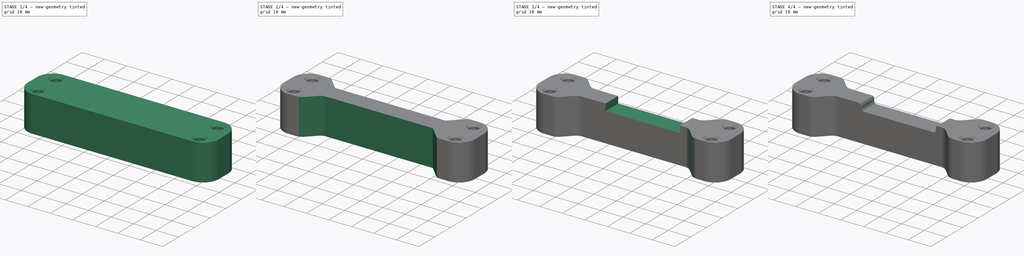
[diagram: build sequence overview — one tinted view per stage of 4, left to right]
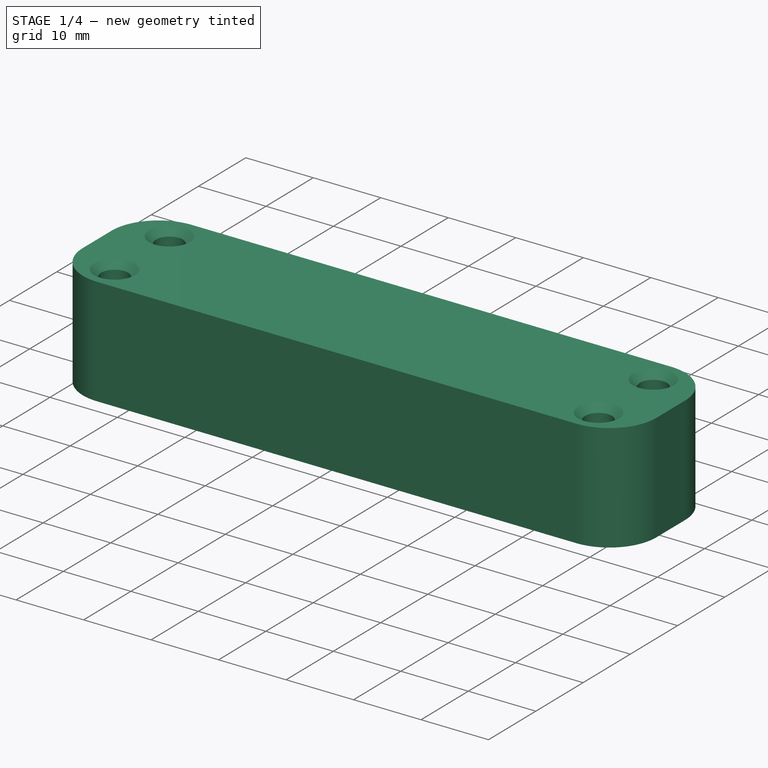
[diagram: stage 1 of 4 — iso view after this stage's code; geometry added in this stage tinted green]
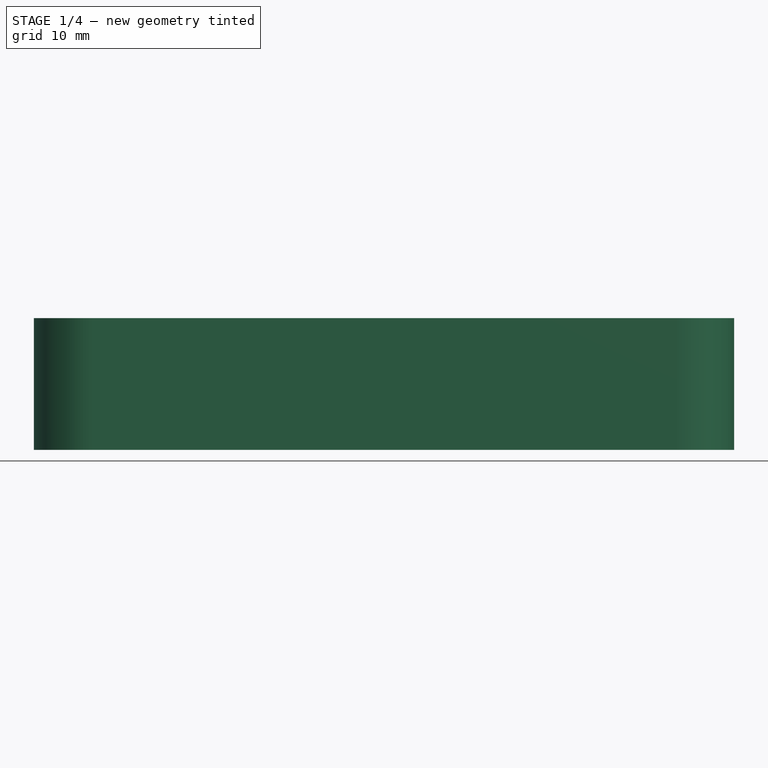
[diagram: stage 1 of 4 — front view after this stage's code; geometry added in this stage tinted green]
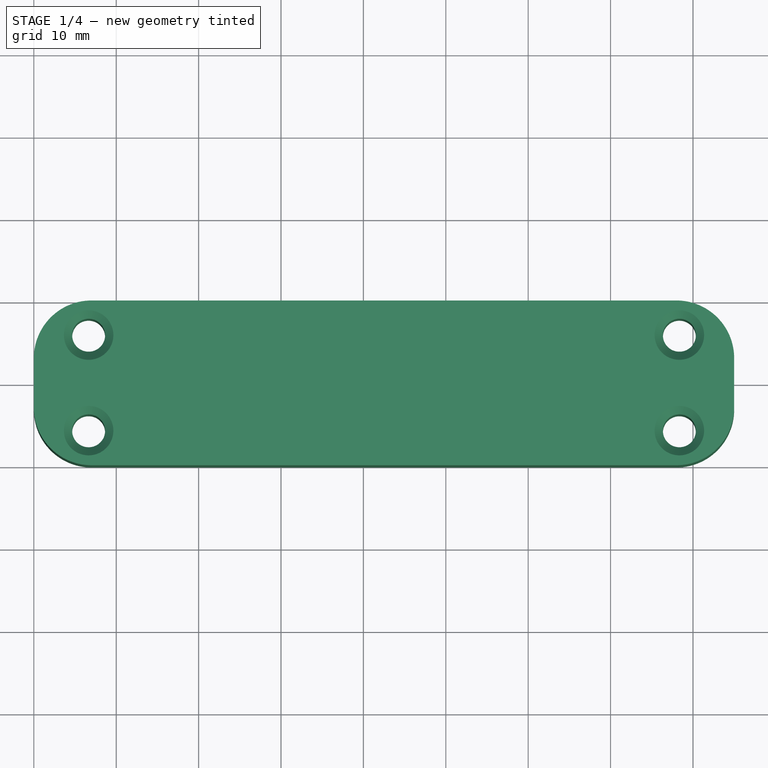
[diagram: stage 1 of 4 — top view after this stage's code; geometry added in this stage tinted green]
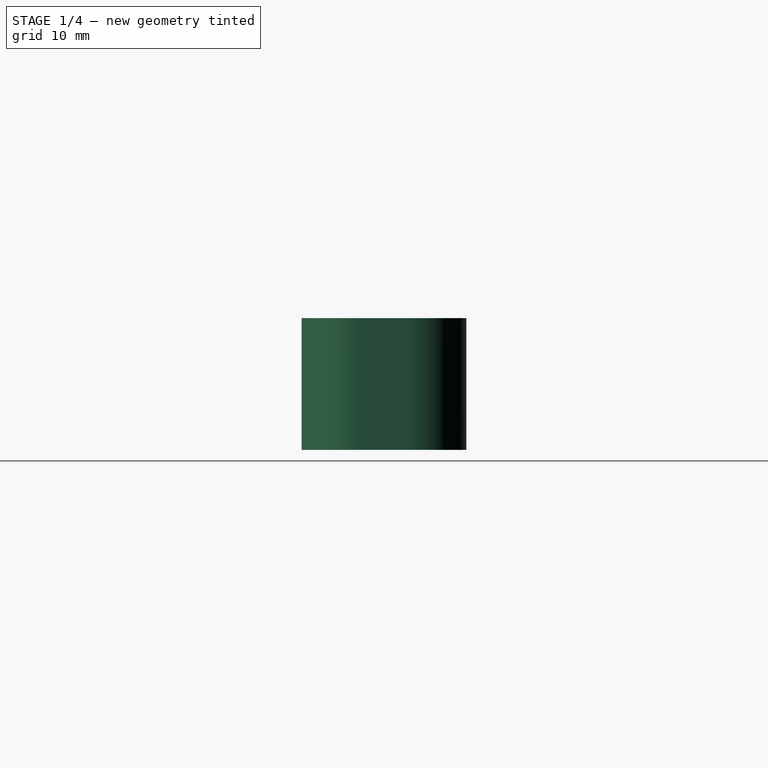
[diagram: stage 1 of 4 — right view after this stage's code; geometry added in this stage tinted green]
FCSTD DOCUMENT  (FreeCAD 0.20R29603 (Git))
Label: entretoise-double-carte-tirettes
License: Public Domain
LicenseURL: http://en.wikipedia.org/wiki/Public_domain
objects: PartDesign::Fillet×8, Sketcher::SketchObject×3, PartDesign::Chamfer×2, PartDesign::Pocket×2, PartDesign::Pad×1, PartDesign::Body×1
note: 30 computed .brp shape members not serialized (recipe doc carries the construction recipe); baked Part::Feature solids carry a one-line shape summary decoded from their .brp

FEATURE [Sketcher::SketchObject] Sketch
  FullyConstrained = true
  MapMode = 5
  Support = -> [XY_Plane]
  sketch-geometry (22):
    g0: ArcOfCircle CenterX=7 CenterY=3 CenterZ=0 NormalX=0 NormalY=0 NormalZ=1 AngleXU=0 Radius=7 StartAngle=1.5708 EndAngle=3.14159
    g1: LineSegment StartX=7 StartY=10 StartZ=0 EndX=78 EndY=10 EndZ=0
    g2: ArcOfCircle CenterX=78 CenterY=3 CenterZ=0 NormalX=0 NormalY=0 NormalZ=1 AngleXU=0 Radius=7 StartAngle=1e-16 EndAngle=1.5708
    g3: LineSegment StartX=85 StartY=3 StartZ=0 EndX=85 EndY=-3 EndZ=0
    g4: ArcOfCircle CenterX=78 CenterY=-3 CenterZ=0 NormalX=0 NormalY=0 NormalZ=1 AngleXU=0 Radius=7 StartAngle=4.71239 EndAngle=6.28319
    g5: LineSegment StartX=78 StartY=-10 StartZ=0 EndX=7 EndY=-10 EndZ=0
    g6: ArcOfCircle CenterX=7 CenterY=-3 CenterZ=0 NormalX=0 NormalY=0 NormalZ=1 AngleXU=0 Radius=7 StartAngle=3.14159 EndAngle=4.71239
    g7: LineSegment StartX=0 StartY=-3 StartZ=0 EndX=0 EndY=3 EndZ=0
    g8: GeomPoint X=0 Y=10 Z=0
    g9: GeomPoint X=85 Y=-10 Z=0
    g10: Circle CenterX=6.65 CenterY=5.8 CenterZ=0 NormalX=0 NormalY=0 NormalZ=1 AngleXU=0 Radius=2
    g11: Circle CenterX=78.35 CenterY=5.8 CenterZ=0 NormalX=0 NormalY=0 NormalZ=1 AngleXU=0 Radius=2
    g12: Circle CenterX=6.65 CenterY=-5.8 CenterZ=0 NormalX=0 NormalY=0 NormalZ=1 AngleXU=0 Radius=2
    g13: Circle CenterX=78.35 CenterY=-5.8 CenterZ=0 NormalX=0 NormalY=0 NormalZ=1 AngleXU=0 Radius=2
    g14: LineSegment StartX=6.65 StartY=5.8 StartZ=0 EndX=78.35 EndY=5.8 EndZ=0
    g15: LineSegment StartX=78.35 StartY=5.8 StartZ=0 EndX=78.35 EndY=-5.8 EndZ=0
    g16: LineSegment StartX=78.35 StartY=-5.8 StartZ=0 EndX=6.65 EndY=-5.8 EndZ=0
    g17: LineSegment StartX=6.65 StartY=-5.8 StartZ=0 EndX=6.65 EndY=5.8 EndZ=0
    g18: GeomPoint X=42.5 Y=5.8 Z=0
    g19: GeomPoint X=42.5 Y=10 Z=0
    g20: GeomPoint X=6.65 Y=0 Z=0
    g21: GeomPoint X=0 Y=0 Z=0
  constraints (49):
    c: Tangent(g0,g1) = 1.5708
    c: Tangent(g1,g2) = 1.5708
    c: Tangent(g2,g3) = 1.5708
    c: Tangent(g3,g4) = 1.5708
    c: Tangent(g4,g5) = 1.5708
    c: Tangent(g5,g6) = 1.5708
    c: Tangent(g6,g7) = 1.5708
    c: Tangent(g7,g0) = 1.5708
    c: Horizontal(g1)
    c: Vertical(g3)
    c: Equal(g0,g2)
    c: Equal(g2,g4)
    c: Equal(g4,g6)
    c: PointOnObject(g8,g1)
    c: PointOnObject(g8,g7)
    c: PointOnObject(g9,g3)
    c: PointOnObject(g9,g5)
    c: DistanceX(g6,g3) = 85
    c: DistanceY(g5,g0) = 20
    c: Radius(g0) = 7
    c: Tangent(g7,g-2)
    c: DistanceX(g10,g11) = 71.7
    c: Diameter(g10) = 4
    c: Diameter(g11) = 4
    c: Horizontal(g10,g11)
    c: DistanceX(g12,g13) = 71.7
    c: Equal(g10,g12) = 4
    c: Equal(g11,g13) = 4
    c: Horizontal(g12,g13)
    c: Vertical(g10,g12)
    c: DistanceY(g12,g10) = 11.6
    c: Coincident(g14,g15)
    c: Coincident(g15,g16)
    c: Coincident(g16,g17)
    c: Coincident(g17,g14)
    c: Horizontal(g14)
    c: Horizontal(g16)
    c: Vertical(g15)
    c: Vertical(g17)
    c: Coincident(g14,g10)
    c: Coincident(g15,g13)
    c: Symmetric(g10,g11,g18)
    c: Symmetric(g0,g1,g19)
    c: Vertical(g18,g19)
    c: Symmetric(g10,g12,g20)
    c: Symmetric(g0,g6,g21)
    c: Horizontal(g21,g20)
    c: PointOnObject(g20,g-1)
    c: Horizontal(g5)
FEATURE [PartDesign::Pad] Pad
  Direction = (0,0,1)
  Length = 16
  Length2 = 10
  Profile = -> Sketch
  ReferenceAxis = -> Sketch [N_Axis]
  Type = 0
FEATURE [PartDesign::Chamfer] Chamfer
  Angle = 45
  Base = -> Pad [Edge33,Edge27,Edge36,Edge30]
  BaseFeature = -> Pad
  ChamferType = 0
  FlipDirection = false
  Size = 1
  Size2 = 1
  SupportTransform = false
  UseAllEdges = false
FEATURE [PartDesign::Chamfer] Chamfer001
  Angle = 45
  Base = -> Chamfer [Edge14,Edge3,Edge15,Edge16]
  BaseFeature = -> Chamfer
  ChamferType = 0
  FlipDirection = false
  Size = 1
  Size2 = 1
  SupportTransform = false
  UseAllEdges = false
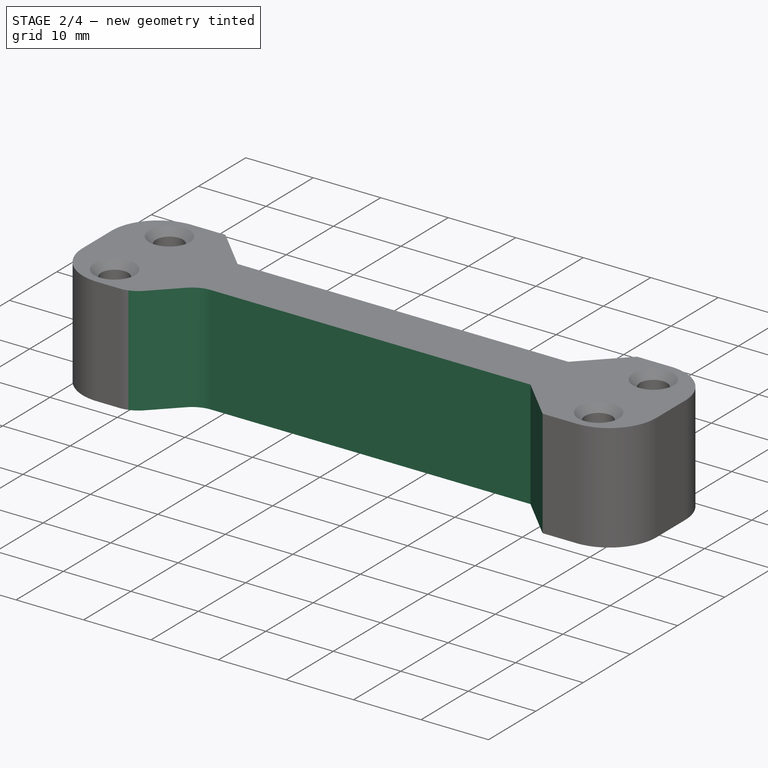
[diagram: stage 2 of 4 — iso view after this stage's code; geometry added in this stage tinted green]
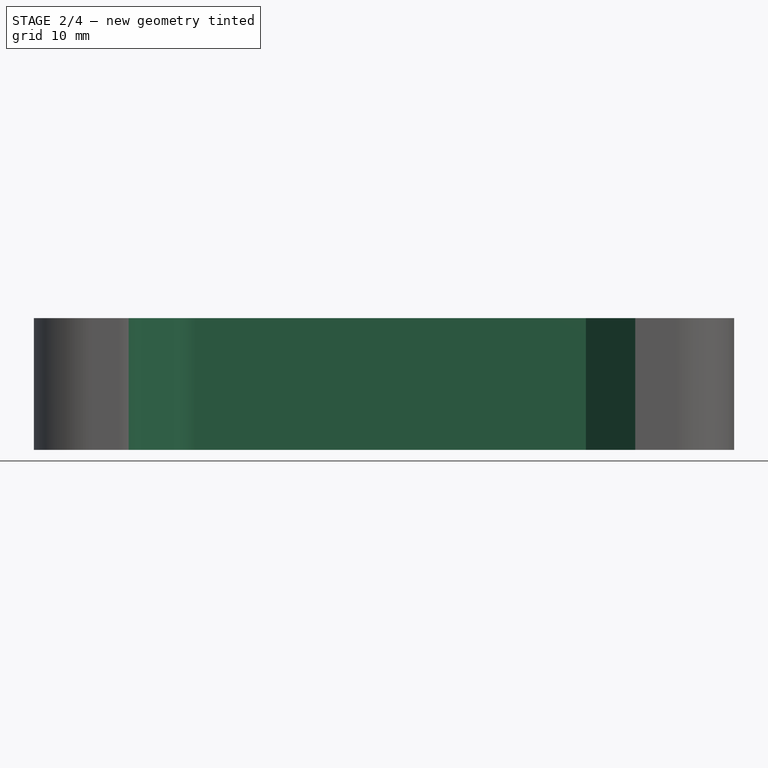
[diagram: stage 2 of 4 — front view after this stage's code; geometry added in this stage tinted green]
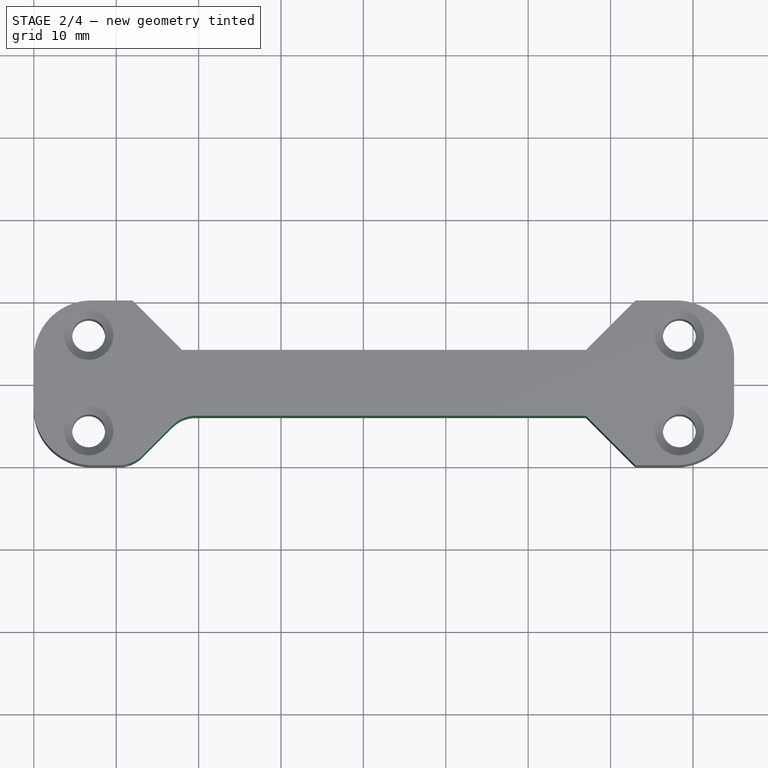
[diagram: stage 2 of 4 — top view after this stage's code; geometry added in this stage tinted green]
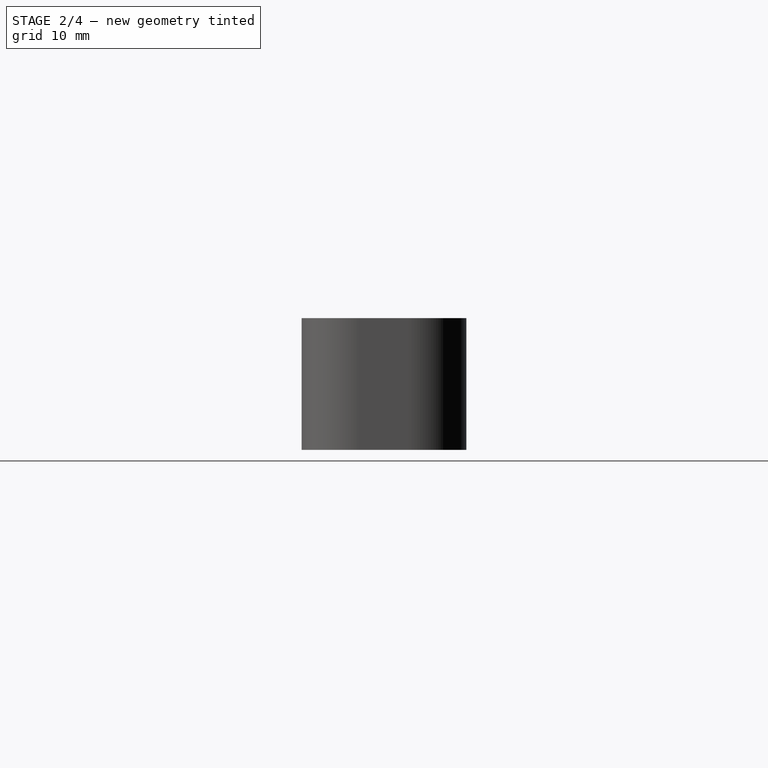
[diagram: stage 2 of 4 — right view after this stage's code; geometry added in this stage tinted green]
FEATURE [Sketcher::SketchObject] Sketch001
  ExternalGeometry = -> [Chamfer001]
  FullyConstrained = true
  MapMode = 5
  Placement = pos=(0,0,16) rot=(0,0,1;0rad)
  Support = -> [Chamfer001]
  sketch-geometry (8):
    g0: LineSegment StartX=12 StartY=10 StartZ=0 EndX=18 EndY=4 EndZ=0
    g1: LineSegment StartX=18 StartY=4 StartZ=0 EndX=67 EndY=4 EndZ=0
    g2: LineSegment StartX=67 StartY=4 StartZ=0 EndX=73 EndY=10 EndZ=0
    g3: LineSegment StartX=73 StartY=10 StartZ=0 EndX=12 EndY=10 EndZ=0
    g4: LineSegment StartX=12 StartY=-10 StartZ=0 EndX=73 EndY=-10 EndZ=0
    g5: LineSegment StartX=73 StartY=-10 StartZ=0 EndX=67 EndY=-4 EndZ=0
    g6: LineSegment StartX=67 StartY=-4 StartZ=0 EndX=18 EndY=-4 EndZ=0
    g7: LineSegment StartX=18 StartY=-4 StartZ=0 EndX=12 EndY=-10 EndZ=0
  constraints (24):
    c: Coincident(g0,g1)
    c: Horizontal(g1)
    c: Coincident(g1,g2)
    c: Coincident(g2,g3)
    c: Angle(g0,g3) = 0.785398
    c: Angle(g3,g2) = 0.785398
    c: Coincident(g0,g3)
    c: PointOnObject(g0,g-3)
    c: PointOnObject(g2,g-3)
    c: DistanceY(g0) = 4
    c: DistanceX(g-3,g0) = 5
    c: DistanceX(g2,g-3) = 5
    c: PointOnObject(g4,g-4)
    c: PointOnObject(g4,g-4)
    c: Coincident(g4,g5)
    c: Coincident(g5,g6)
    c: Horizontal(g6)
    c: Coincident(g6,g7)
    c: Coincident(g7,g4)
    c: Angle(g4,g7) = 0.785398
    c: Angle(g5,g4) = 0.785398
    c: Equal(g4,g3)
    c: DistanceX(g-4,g4) = 5
    c: DistanceY(g6) = -4
FEATURE [PartDesign::Pocket] Pocket
  BaseFeature = -> Chamfer001
  Direction = (0,0,-1)
  Length = 5
  Length2 = 5
  Profile = -> Sketch001
  ReferenceAxis = -> Sketch001 [N_Axis]
  Type = 1
FEATURE [PartDesign::Fillet] Fillet
  Base = -> Pocket [Edge58]
  BaseFeature = -> Pocket
  Radius = 4
  SupportTransform = false
  UseAllEdges = false
FEATURE [PartDesign::Fillet] Fillet001
  Base = -> Fillet [Edge24]
  BaseFeature = -> Fillet
  Radius = 4
  SupportTransform = false
  UseAllEdges = false
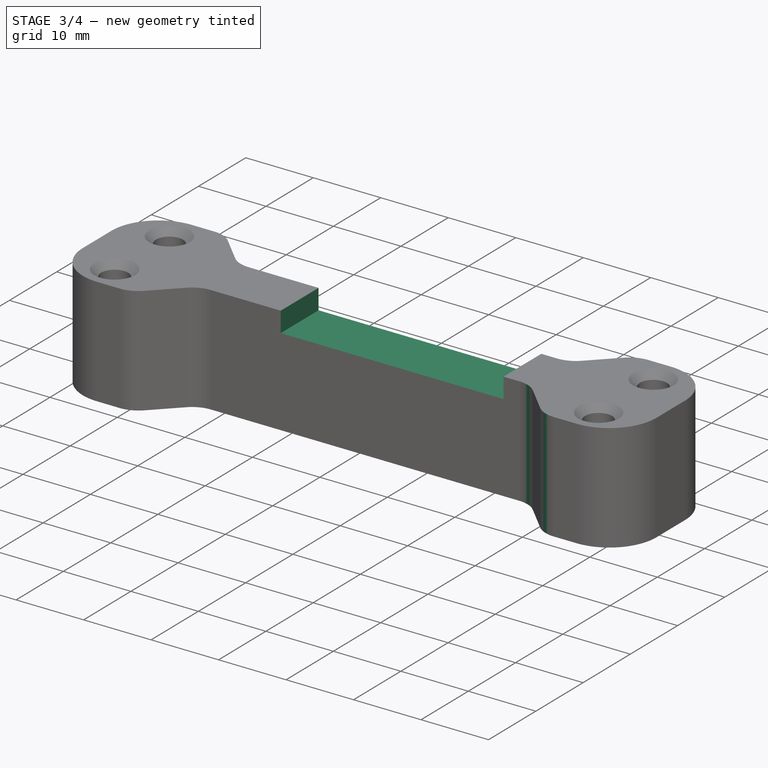
[diagram: stage 3 of 4 — iso view after this stage's code; geometry added in this stage tinted green]
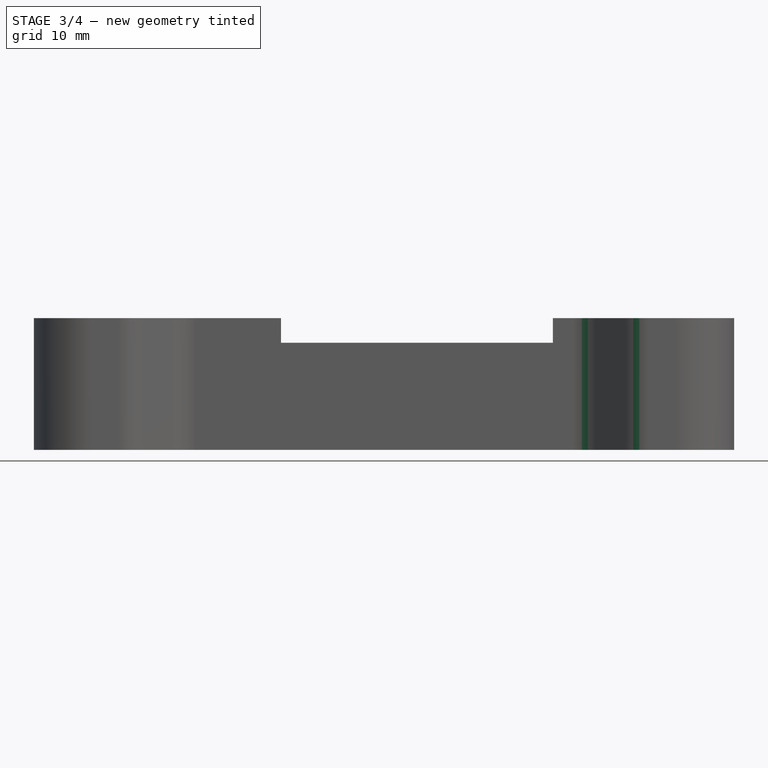
[diagram: stage 3 of 4 — front view after this stage's code; geometry added in this stage tinted green]
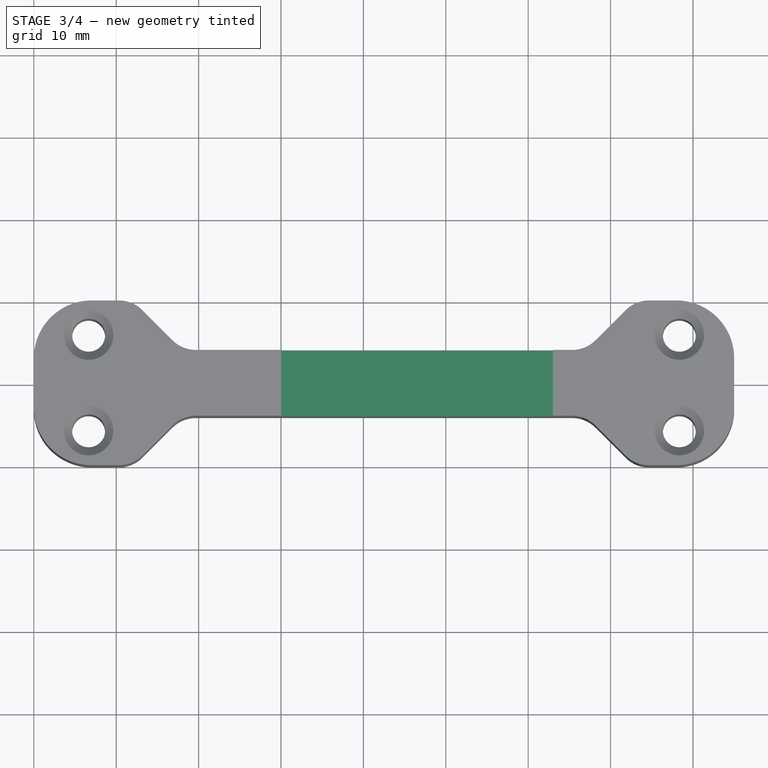
[diagram: stage 3 of 4 — top view after this stage's code; geometry added in this stage tinted green]
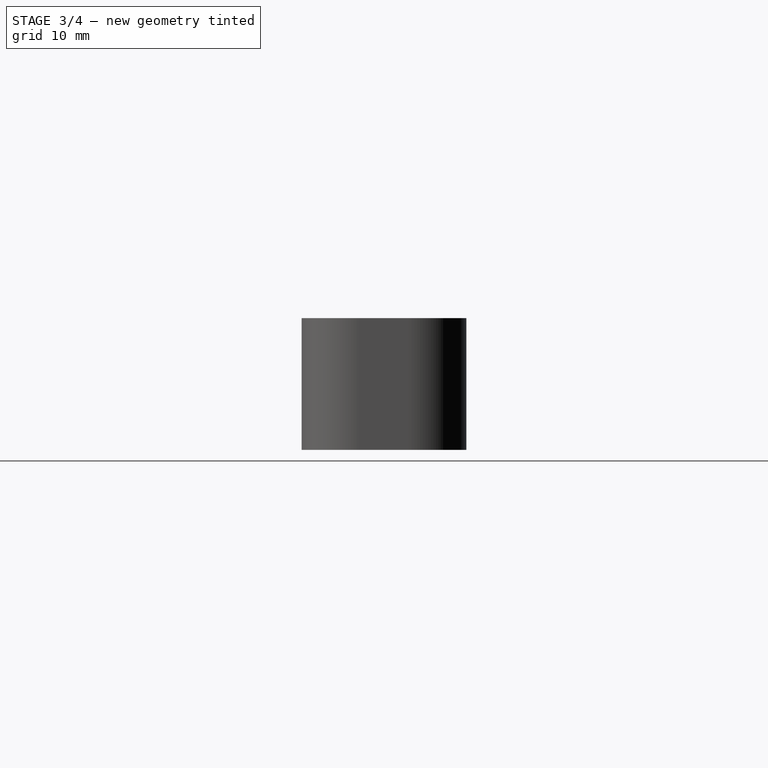
[diagram: stage 3 of 4 — right view after this stage's code; geometry added in this stage tinted green]
FEATURE [PartDesign::Fillet] Fillet002
  Base = -> Fillet001 [Edge35,Edge31]
  BaseFeature = -> Fillet001
  Radius = 4
  SupportTransform = false
  UseAllEdges = false
FEATURE [PartDesign::Fillet] Fillet003
  Base = -> Fillet002 [Edge58,Edge63]
  BaseFeature = -> Fillet002
  Radius = 4
  SupportTransform = false
  UseAllEdges = false
FEATURE [PartDesign::Fillet] Fillet004
  Base = -> Fillet003 [Edge47,Edge43]
  BaseFeature = -> Fillet003
  Radius = 4
  SupportTransform = false
  UseAllEdges = false
FEATURE [Sketcher::SketchObject] Sketch002
  ExternalGeometry = -> [Fillet004]
  FullyConstrained = true
  MapMode = 5
  Placement = pos=(0,0,16) rot=(0,0,1;0rad)
  Support = -> [Fillet004]
  sketch-geometry (4):
    g0: LineSegment StartX=30 StartY=5 StartZ=0 EndX=63 EndY=5 EndZ=0
    g1: LineSegment StartX=63 StartY=5 StartZ=0 EndX=63 EndY=-5 EndZ=0
    g2: LineSegment StartX=63 StartY=-5 StartZ=0 EndX=30 EndY=-5 EndZ=0
    g3: LineSegment StartX=30 StartY=-5 StartZ=0 EndX=30 EndY=5 EndZ=0
  constraints (11):
    c: Coincident(g0,g1)
    c: Coincident(g1,g2)
    c: Coincident(g2,g3)
    c: Coincident(g3,g0)
    c: Horizontal(g0)
    c: Horizontal(g2)
    c: Vertical(g3)
    c: DistanceX(g0,g-3) = 22
    c: DistanceX(g0,g0) = 33
    c: DistanceY(g1,g1) = 10
    c: Symmetric(g0,g1,g-1)
FEATURE [PartDesign::Pocket] Pocket001
  BaseFeature = -> Fillet004
  Direction = (0,0,-1)
  Length = 3
  Length2 = 5
  Profile = -> Sketch002
  ReferenceAxis = -> Sketch002 [N_Axis]
  Type = 0
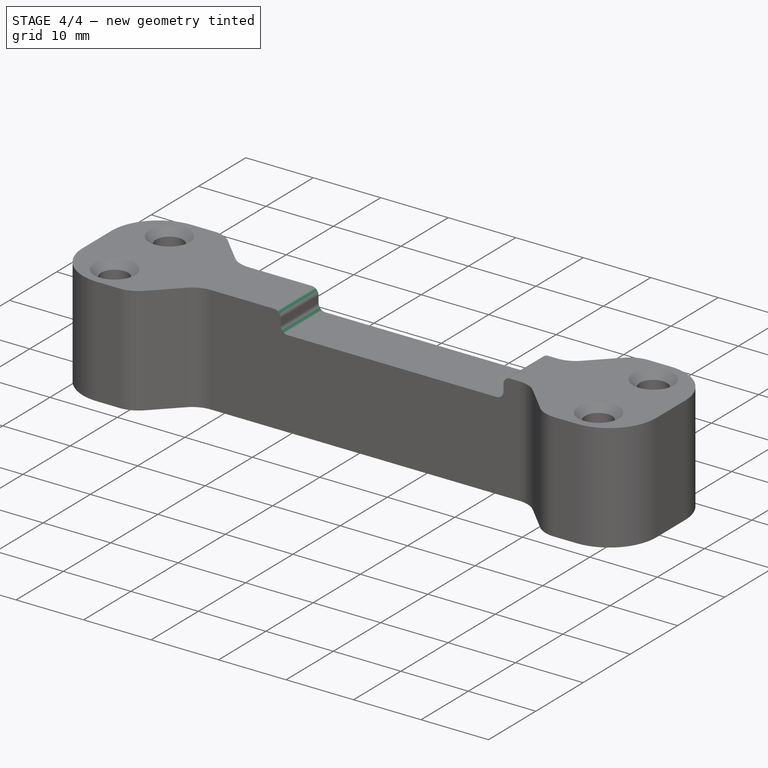
[diagram: stage 4 of 4 — iso view after this stage's code; geometry added in this stage tinted green]
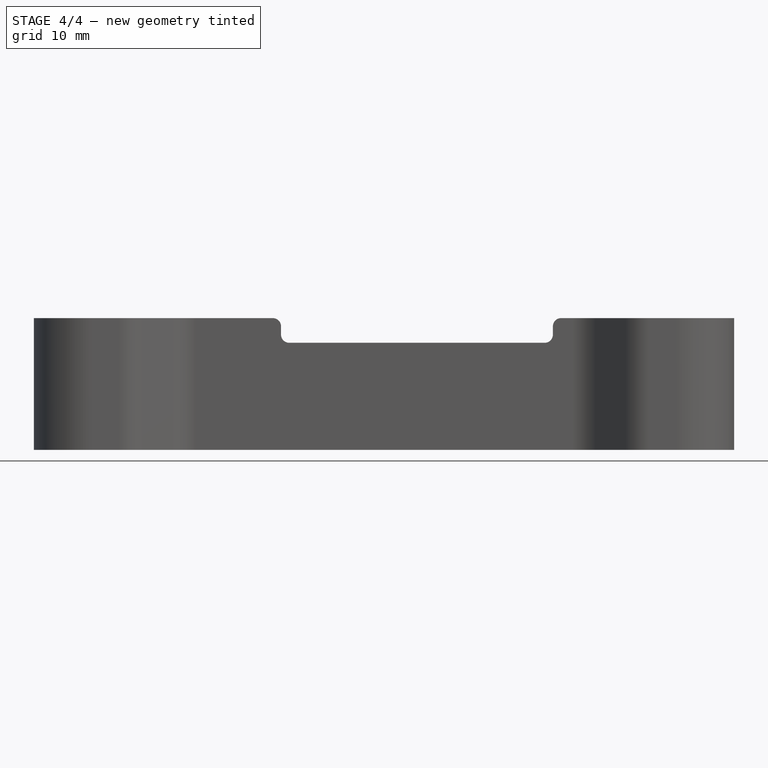
[diagram: stage 4 of 4 — front view after this stage's code; geometry added in this stage tinted green]
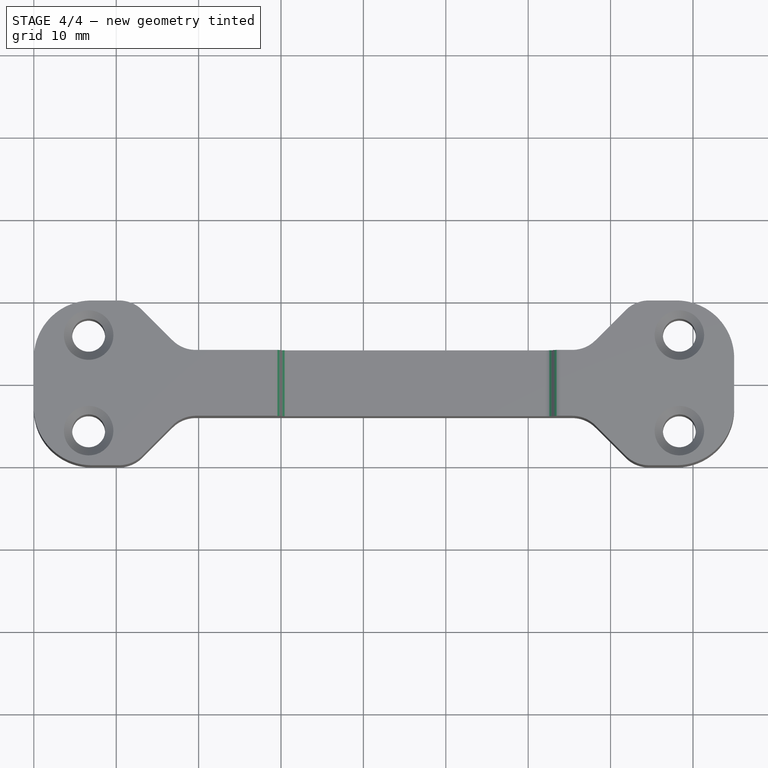
[diagram: stage 4 of 4 — top view after this stage's code; geometry added in this stage tinted green]
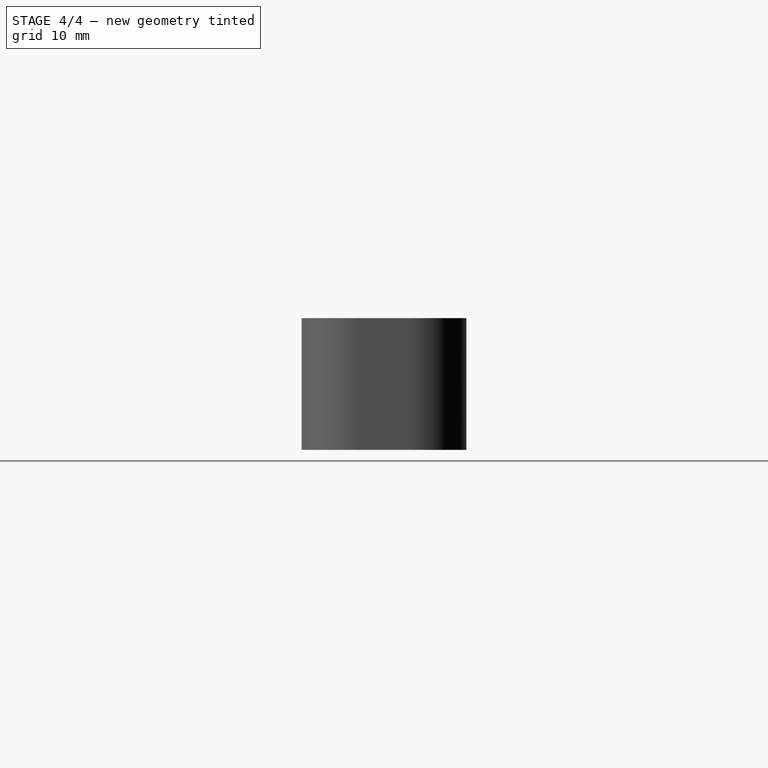
[diagram: stage 4 of 4 — right view after this stage's code; geometry added in this stage tinted green]
FEATURE [PartDesign::Fillet] Fillet005
  Base = -> Pocket001 [Edge93,Edge98]
  BaseFeature = -> Pocket001
  Radius = 1
  SupportTransform = false
  UseAllEdges = false
FEATURE [PartDesign::Fillet] Fillet006
  Base = -> Fillet005 [Edge58]
  BaseFeature = -> Fillet005
  Radius = 1
  SupportTransform = false
  UseAllEdges = false
FEATURE [PartDesign::Fillet] Fillet007
  Base = -> Fillet006 [Edge13]
  BaseFeature = -> Fillet006
  Radius = 1
  SupportTransform = false
  UseAllEdges = false
FEATURE [PartDesign::Body] Body
  Group = -> [Sketch,Pad,Chamfer,Chamfer001,Sketch001,Pocket,Fillet,Fillet001,Fillet002,Fillet003,Fillet004,Sketch002,Pocket001,Fillet005,Fillet006,Fillet007]
  Origin = -> Origin
  Tip = -> Fillet007
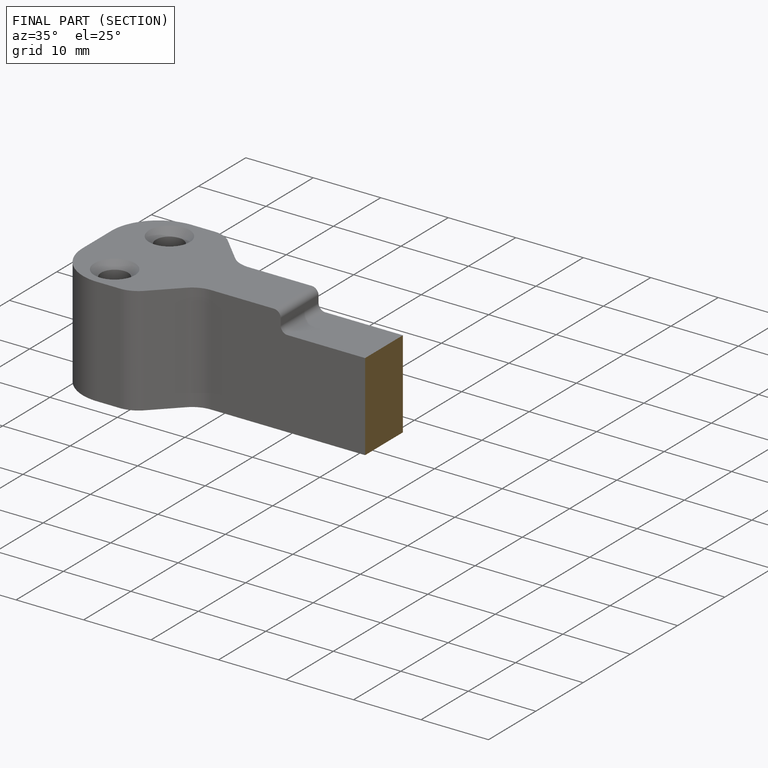
[diagram: finished part — half-section view (interior)]
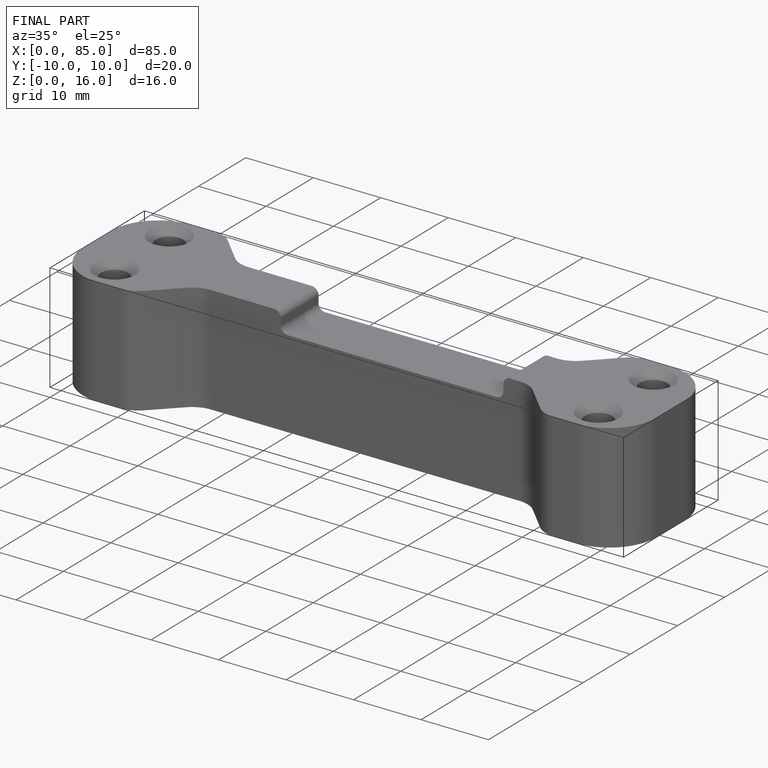
[diagram: finished part — iso view with bounding-box wireframe]
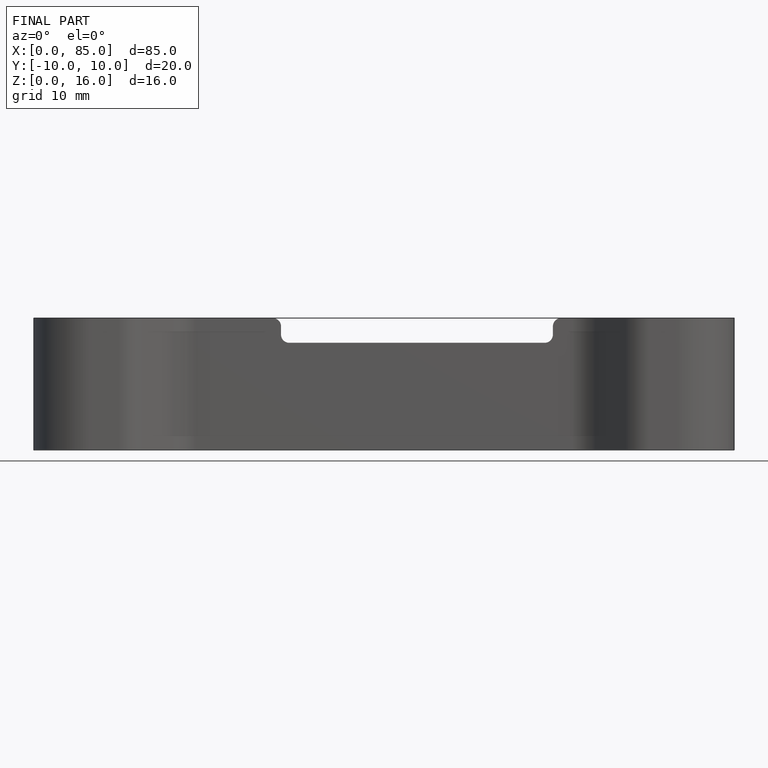
[diagram: finished part — front view with bounding-box wireframe]
